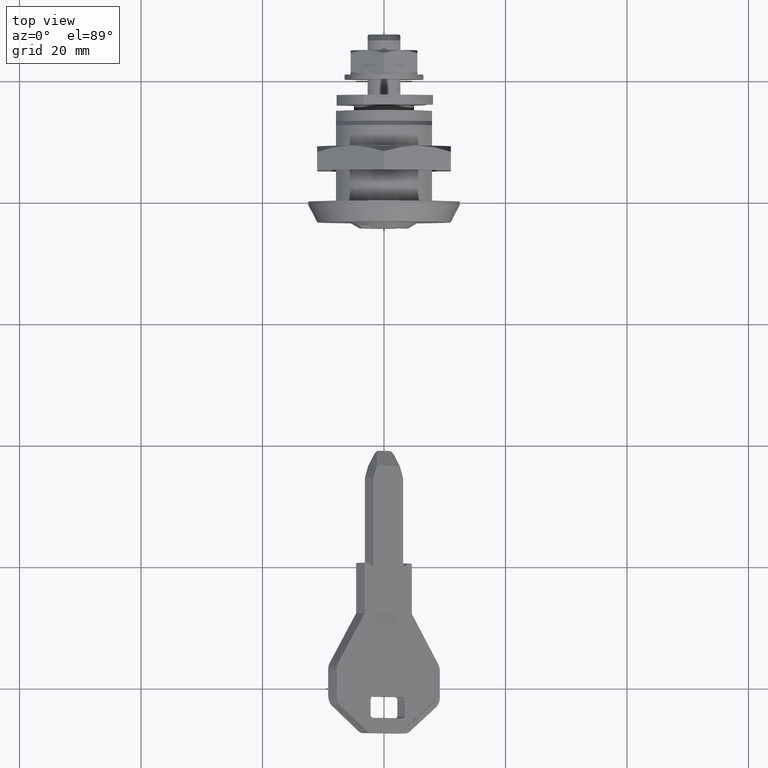
[diagram: clean part render]
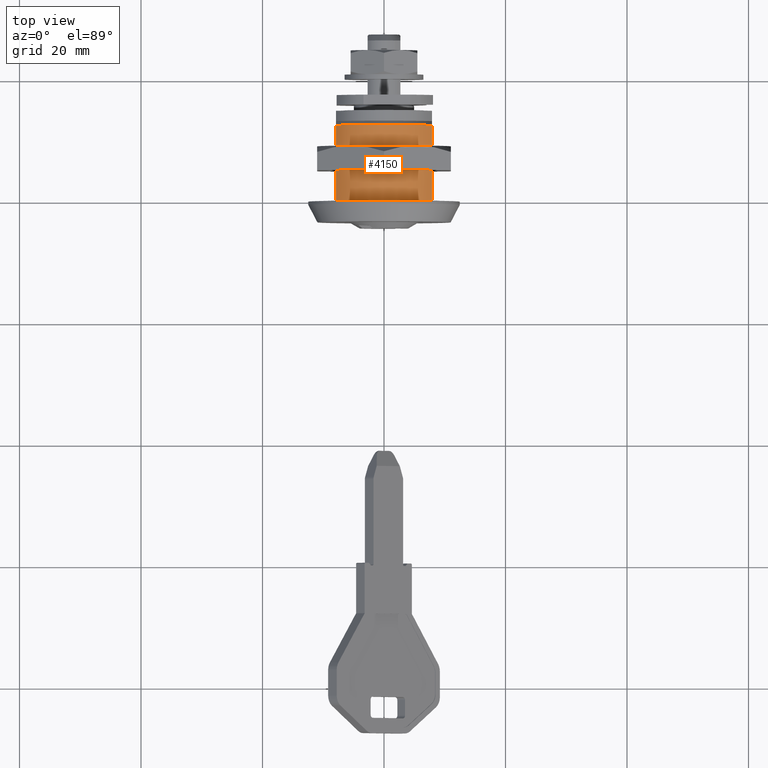
[diagram: same view with one face highlighted and labeled with its STEP entity id]
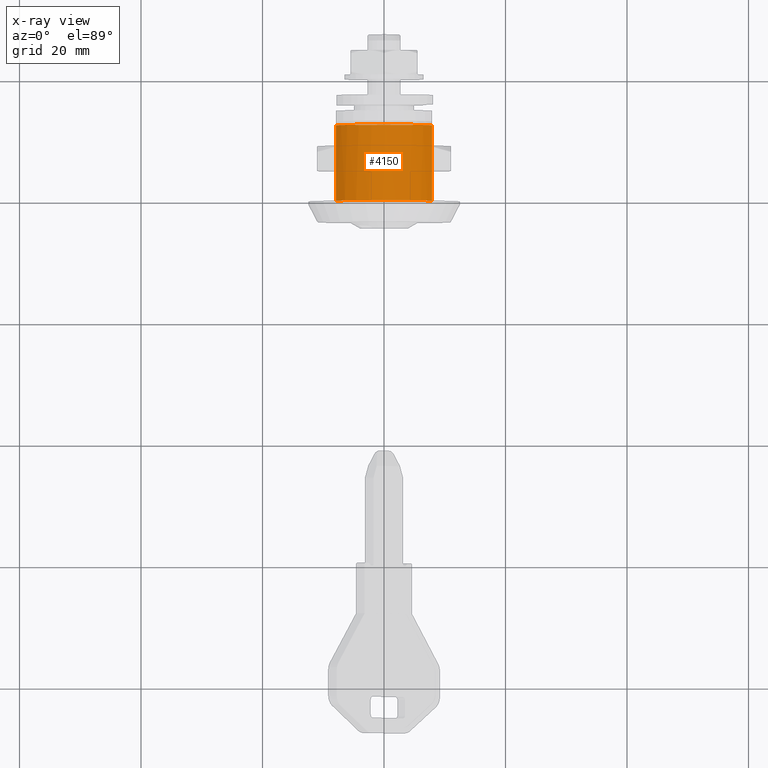
[diagram: x-ray of the same camera — body ghosted, the highlighted face saturated]
A machine part, top view. The second image highlights one B-rep face of the part: STEP entity #4150.
The next image is the same camera in x-ray: the body ghosted, the highlighted face saturated — about 0% of this face is hidden behind the body in this view.
In plain terms, the highlighted face is a freeform B-spline surface patch.
Its self-contained STEP definition (entity closure, byte-faithful):
#3840=CARTESIAN_POINT('',(-7.900000000000000,12.500000000000000,5.276362383349420));
#3841=VERTEX_POINT('',#3840);
#3851=CARTESIAN_POINT('',(7.900000000000092,12.500000000000000,5.276362383349190));
#3852=VERTEX_POINT('',#3851);
#3853=CARTESIAN_POINT('',(7.900000000000092,12.500000000000000,5.276362383349190));
#3854=CARTESIAN_POINT('',(7.414533233736026,12.500000000000011,6.003812900382844));
#3855=CARTESIAN_POINT('',(6.370988458868396,12.499999999999980,7.176253316608681));
#3856=CARTESIAN_POINT('',(4.432964703162742,12.500000000000011,8.497640244087492));
#3857=CARTESIAN_POINT('',(2.606089548571711,12.499999999999989,9.202434366183155));
#3858=CARTESIAN_POINT('',(0.780652732915830,12.500000000000011,9.513354311815503));
#3859=CARTESIAN_POINT('',(-0.683085352413431,12.500000000000000,9.513348821254265));
#3860=CARTESIAN_POINT('',(-2.126235755126744,12.500000000000011,9.290142329014428));
#3861=CARTESIAN_POINT('',(-3.619821853063740,12.500000000000011,8.842070567867227));
#3862=CARTESIAN_POINT('',(-5.270691719809615,12.499999999999989,7.991869773740539));
#3863=CARTESIAN_POINT('',(-6.777618490764795,12.500000000000041,6.746891393918209));
#3864=CARTESIAN_POINT('',(-7.576219230458197,12.499999999999980,5.761220717401224));
#3865=CARTESIAN_POINT('',(-7.900000000000000,12.500000000000000,5.276362383349420));
#3866=B_SPLINE_CURVE_WITH_KNOTS('',3,(#3853,#3854,#3855,#3856,#3857,#3858,#3859,#3860,#3861,#3862,#3863,#3864,#3865),.UNSPECIFIED.,.F.,.U.,(4,1,1,1,1,1,1,1,1,1,4),(0.000000050937828,2.623626962835525,4.664283638427273,6.996444579695005,8.454040741543222,10.203099795557179,11.369183106075459,12.826762684974570,14.867411737613709,16.908033299622200,18.657129072744429),.UNSPECIFIED.);
#3867=EDGE_CURVE('',#3852,#3841,#3866,.T.);
#4091=CARTESIAN_POINT('',(-7.900000000000000,0.099999999999989,5.276362383349420));
#4092=VERTEX_POINT('',#4091);
#4098=CARTESIAN_POINT('',(-7.900000000000000,12.500000000000000,5.276362383349420));
#4099=CARTESIAN_POINT('',(-7.900000000000000,0.099999999999989,5.276362383349420));
#4100=QUASI_UNIFORM_CURVE('',1,(#4098,#4099),.UNSPECIFIED.,.F.,.U.);
#4101=EDGE_CURVE('',#3841,#4092,#4100,.T.);
#4109=CARTESIAN_POINT('',(-8.077362036905395,12.810000000000000,5.000622213801107));
#4110=CARTESIAN_POINT('',(-8.077362036905395,-0.217750000000011,5.000622213801107));
#4111=CARTESIAN_POINT('',(0.412009869079353,12.810000000000002,18.713261845300057));
#4112=CARTESIAN_POINT('',(0.412009869079352,-0.217750000000011,18.713261845300057));
#4113=CARTESIAN_POINT('',(8.289625557818642,12.810000000000000,4.640270262768383));
#4114=CARTESIAN_POINT('',(8.289625557818642,-0.217750000000012,4.640270262768383));
#4122=(BOUNDED_SURFACE()B_SPLINE_SURFACE(1,2,((#4109,#4111,#4113),(#4110,#4112,#4114)),.UNSPECIFIED.,.F.,.F.,.U.)B_SPLINE_SURFACE_WITH_KNOTS((2,2),(3,3),(0.0,13.027750000000021),(0.0,21.718789319878439),.UNSPECIFIED.)GEOMETRIC_REPRESENTATION_ITEM()RATIONAL_B_SPLINE_SURFACE(((1.0,0.507538362960704,1.0),(1.0,0.507538362960704,1.0)))REPRESENTATION_ITEM('')SURFACE());
#4123=CARTESIAN_POINT('',(7.900000000000091,0.099999999999989,5.276362383349190));
#4124=VERTEX_POINT('',#4123);
#4125=CARTESIAN_POINT('',(7.900000000000092,12.500000000000000,5.276362383349190));
#4126=CARTESIAN_POINT('',(7.900000000000091,0.099999999999989,5.276362383349190));
#4127=QUASI_UNIFORM_CURVE('',1,(#4125,#4126),.UNSPECIFIED.,.F.,.U.);
#4128=EDGE_CURVE('',#3852,#4124,#4127,.T.);
#4129=ORIENTED_EDGE('',*,*,#4128,.F.);
#4130=ORIENTED_EDGE('',*,*,#3867,.T.);
#4131=ORIENTED_EDGE('',*,*,#4101,.T.);
#4132=CARTESIAN_POINT('',(-7.900000000000000,0.099999999999989,5.276362383349420));
#4133=CARTESIAN_POINT('',(-7.414546474796677,0.099999999999989,6.003836135273826));
#4134=CARTESIAN_POINT('',(-6.436186965093164,0.099999999999990,7.102934227672783));
#4135=CARTESIAN_POINT('',(-4.840620660915168,0.099999999999989,8.226878947103005));
#4136=CARTESIAN_POINT('',(-3.169220992128073,0.099999999999990,9.024006800239778));
#4137=CARTESIAN_POINT('',(-1.364825743728808,0.099999999999988,9.476110344811032));
#4138=CARTESIAN_POINT('',(0.390889024407668,0.099999999999990,9.529808600298459));
#4139=CARTESIAN_POINT('',(1.840210619932793,0.099999999999987,9.351011538043574));
#4140=CARTESIAN_POINT('',(3.158477312189401,0.099999999999990,8.999175909250425));
#4141=CARTESIAN_POINT('',(4.585911293018542,0.099999999999988,8.371522175454164));
#4142=CARTESIAN_POINT('',(6.296770854135452,0.099999999999989,7.243423897489814));
#4143=CARTESIAN_POINT('',(7.360663133369405,0.099999999999988,6.084731917511516));
#4144=CARTESIAN_POINT('',(7.900000000000091,0.099999999999989,5.276362383349190));
#4145=B_SPLINE_CURVE_WITH_KNOTS('',3,(#4132,#4133,#4134,#4135,#4136,#4137,#4138,#4139,#4140,#4141,#4142,#4143,#4144),.UNSPECIFIED.,.F.,.U.,(4,1,1,1,1,1,1,1,1,1,4),(0.000000050939452,2.623626962836614,4.372763249655172,5.830357250451707,8.162524693223380,9.911584010433939,11.077660333356169,12.535245254925670,13.992846816488330,15.741963940313040,18.657129072744439),.UNSPECIFIED.);
#4146=EDGE_CURVE('',#4092,#4124,#4145,.T.);
#4147=ORIENTED_EDGE('',*,*,#4146,.T.);
#4148=EDGE_LOOP('',(#4129,#4130,#4131,#4147));
#4149=FACE_OUTER_BOUND('',#4148,.T.);
#4150=ADVANCED_FACE('',(#4149),#4122,.T.);